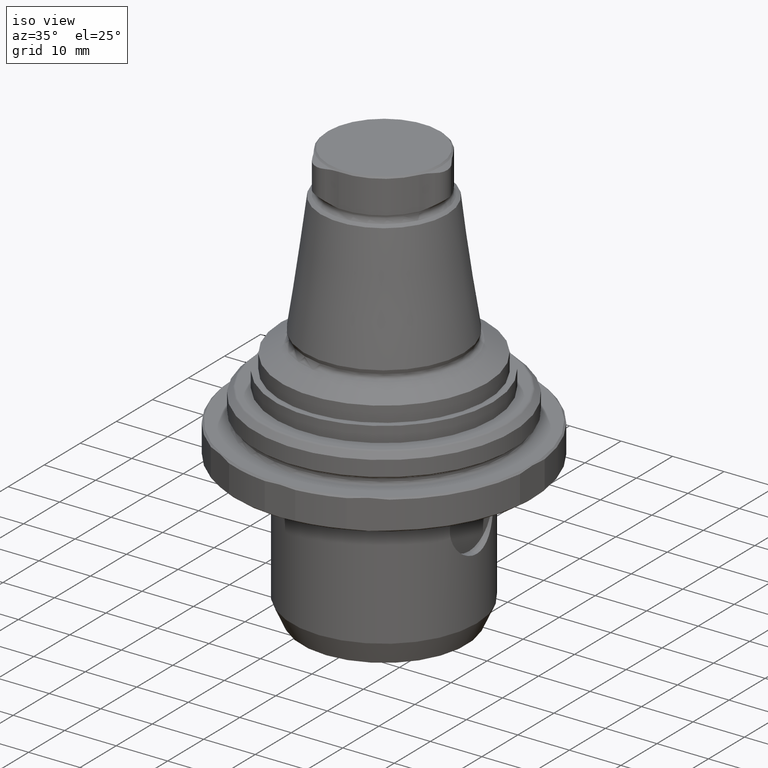
[diagram: clean part render]
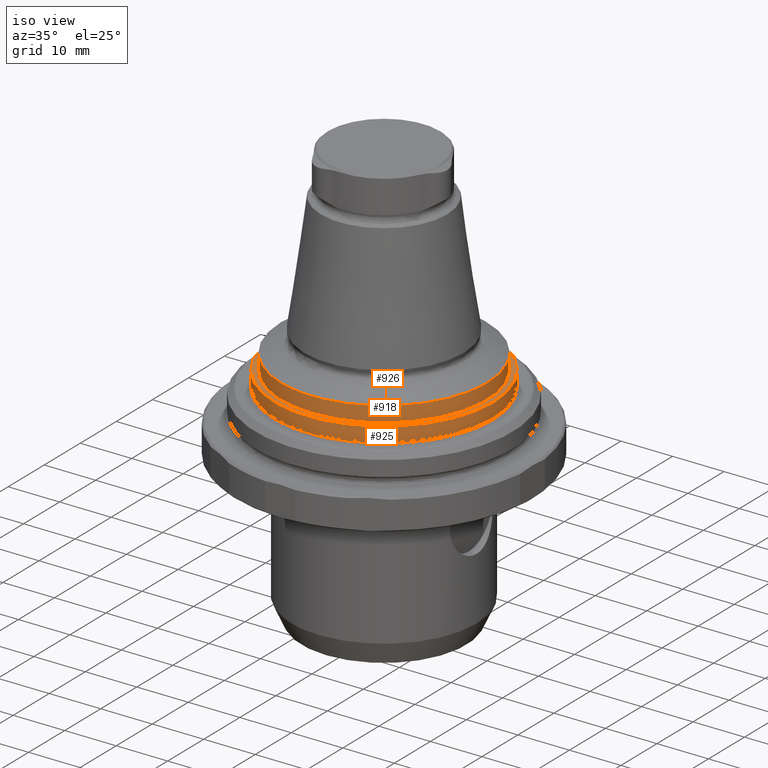
[diagram: same view with one multi-face feature highlighted, each face labeled with its STEP entity id]
A machine part, iso view. The highlighted faces form ONE feature: a stepped (counterbored) hole: 2 coaxial cylindrical walls of radii 20 -> 21.2 mm joined by 1 annular planar shoulder face(s). The faces share edges in the B-rep.
Their STEP definitions:
[1] entity #925 (Cylinder):
#127=CIRCLE('',#1018,21.2);
#128=CIRCLE('',#1019,21.2);
#191=ORIENTED_EDGE('',*,*,#440,.T.);
#192=ORIENTED_EDGE('',*,*,#441,.T.);
#440=EDGE_CURVE('',#567,#567,#127,.T.);
#441=EDGE_CURVE('',#568,#568,#128,.T.);
#567=VERTEX_POINT('',#1476);
#568=VERTEX_POINT('',#1478);
#707=EDGE_LOOP('',(#191));
#708=EDGE_LOOP('',(#192));
#807=FACE_BOUND('',#707,.T.);
#808=FACE_BOUND('',#708,.T.);
#893=CYLINDRICAL_SURFACE('',#1017,21.2);
#925=ADVANCED_FACE('',(#807,#808),#893,.T.);
#1017=AXIS2_PLACEMENT_3D('',#1474,#1163,#1164);
#1018=AXIS2_PLACEMENT_3D('',#1475,#1165,#1166);
#1019=AXIS2_PLACEMENT_3D('',#1477,#1167,#1168);
#1163=DIRECTION('',(-5.21126297509512E-18,7.81689446264269E-18,-1.));
#1164=DIRECTION('',(-1.,6.12303176911188E-17,1.08491142720197E-17));
#1165=DIRECTION('',(5.21126297509514E-18,5.34134232284762E-17,1.));
#1166=DIRECTION('',(1.,-6.12303176911188E-17,-1.08491142720197E-17));
#1167=DIRECTION('',(-5.2112629750951E-18,6.90472121537616E-17,-1.));
#1168=DIRECTION('',(-1.,6.12303176911188E-17,1.08491142720197E-17));
#1474=CARTESIAN_POINT('',(5.41888094796827E-15,-1.17253416939644E-17,6.50407078564789));
#1475=CARTESIAN_POINT('',(5.41106405350563E-15,-3.36291933183207E-31,5.00407078564789));
#1476=CARTESIAN_POINT('',(21.2,-1.29808273505172E-15,5.00407078564789));
#1477=CARTESIAN_POINT('',(5.42669784243092E-15,-2.34506833879284E-17,8.00407078564789));
#1478=CARTESIAN_POINT('',(-21.2,1.27463205166379E-15,8.00407078564789));
[2] entity #918 (Cylinder):
#118=CIRCLE('',#1002,20.);
#119=CIRCLE('',#1003,20.);
#177=ORIENTED_EDGE('',*,*,#431,.T.);
#178=ORIENTED_EDGE('',*,*,#432,.F.);
#431=EDGE_CURVE('',#558,#558,#118,.T.);
#432=EDGE_CURVE('',#559,#559,#119,.F.);
#558=VERTEX_POINT('',#1451);
#559=VERTEX_POINT('',#1453);
#693=EDGE_LOOP('',(#177));
#694=EDGE_LOOP('',(#178));
#793=FACE_BOUND('',#693,.T.);
#794=FACE_BOUND('',#694,.T.);
#890=CYLINDRICAL_SURFACE('',#1001,20.);
#918=ADVANCED_FACE('',(#793,#794),#890,.T.);
#1001=AXIS2_PLACEMENT_3D('',#1449,#1131,#1132);
#1002=AXIS2_PLACEMENT_3D('',#1450,#1133,#1134);
#1003=AXIS2_PLACEMENT_3D('',#1452,#1135,#1136);
#1131=DIRECTION('',(1.27319154200133E-16,-7.79579225983867E-33,-1.));
#1132=DIRECTION('',(-1.,6.12303176911189E-17,-1.27319154200133E-16));
#1133=DIRECTION('',(1.27319154200133E-16,-7.79579225983867E-33,-1.));
#1134=DIRECTION('',(-1.,6.12303176911189E-17,-1.27319154200133E-16));
#1135=DIRECTION('',(5.2112629750951E-18,-6.90472121537616E-17,1.));
#1136=DIRECTION('',(0.,-1.,-6.90472121537616E-17));
#1449=CARTESIAN_POINT('',(0.,0.,47.5040707856479));
#1450=CARTESIAN_POINT('',(4.64714912830484E-15,-2.84546417484111E-31,11.0040707856479));
#1451=CARTESIAN_POINT('',(-20.,1.22460635382238E-15,11.0040707856479));
#1452=CARTESIAN_POINT('',(5.02910659090524E-15,-3.07933794263627E-31,8.0040707856479));
#1453=CARTESIAN_POINT('',(5.02910659090524E-15,-20.,8.00407078564789));
[3] entity #926 (Plane):
#76=PLANE('',#1020);
#119=CIRCLE('',#1003,20.);
#128=CIRCLE('',#1019,21.2);
#193=ORIENTED_EDGE('',*,*,#441,.F.);
#194=ORIENTED_EDGE('',*,*,#432,.T.);
#432=EDGE_CURVE('',#559,#559,#119,.F.);
#441=EDGE_CURVE('',#568,#568,#128,.T.);
#559=VERTEX_POINT('',#1453);
#568=VERTEX_POINT('',#1478);
#709=EDGE_LOOP('',(#193));
#710=EDGE_LOOP('',(#194));
#809=FACE_BOUND('',#709,.T.);
#810=FACE_BOUND('',#710,.T.);
#926=ADVANCED_FACE('',(#809,#810),#76,.T.);
#1003=AXIS2_PLACEMENT_3D('',#1452,#1135,#1136);
#1019=AXIS2_PLACEMENT_3D('',#1477,#1167,#1168);
#1020=AXIS2_PLACEMENT_3D('',#1479,#1169,#1170);
#1135=DIRECTION('',(5.2112629750951E-18,-6.90472121537616E-17,1.));
#1136=DIRECTION('',(0.,-1.,-6.90472121537616E-17));
#1167=DIRECTION('',(-5.2112629750951E-18,6.90472121537616E-17,-1.));
#1168=DIRECTION('',(-1.,6.12303176911188E-17,1.08491142720197E-17));
#1169=DIRECTION('',(5.2112629750951E-18,-6.90472121537616E-17,1.));
#1170=DIRECTION('',(2.8327492261615E-16,1.,6.90472121537612E-17));
#1452=CARTESIAN_POINT('',(5.02910659090524E-15,-3.07933794263627E-31,8.0040707856479));
#1453=CARTESIAN_POINT('',(5.02910659090524E-15,-20.,8.00407078564789));
#1477=CARTESIAN_POINT('',(5.42669784243092E-15,-2.34506833879284E-17,8.00407078564789));
#1478=CARTESIAN_POINT('',(-21.2,1.27463205166379E-15,8.00407078564789));
#1479=CARTESIAN_POINT('',(5.42669784243092E-15,-2.34506833879284E-17,8.00407078564789));